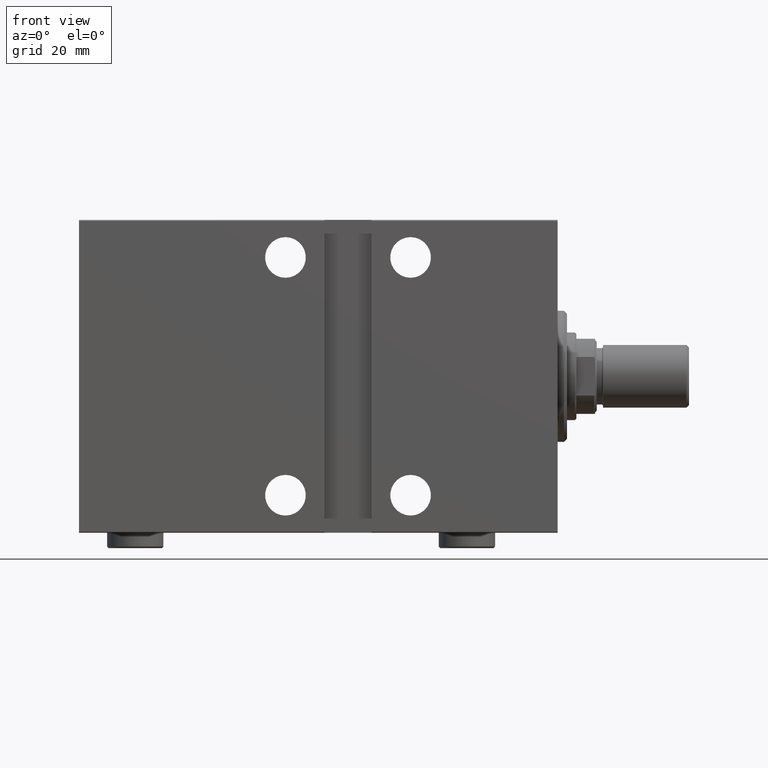
[diagram: clean part render]
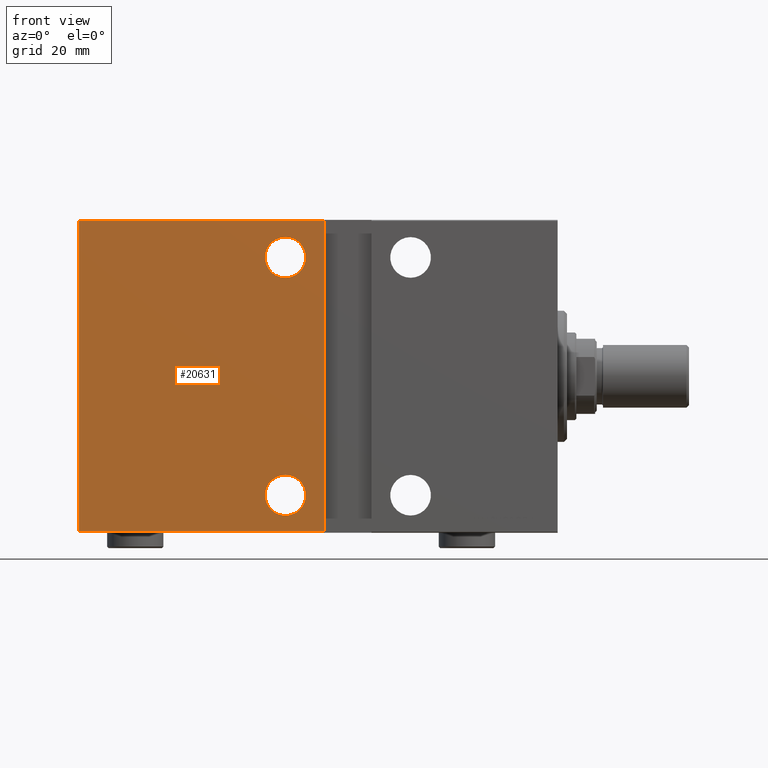
[diagram: same view with one face highlighted and labeled with its STEP entity id]
A machine part, front view. The second image highlights one B-rep face of the part: STEP entity #20631.
In plain terms, the highlighted planar face has unit normal (-0, 1, -0).
Its self-contained STEP definition (entity closure, byte-faithful):
#481 = FACE_BOUND ( 'NONE', #35650, .T. ) ;
#652 = VERTEX_POINT ( 'NONE', #31370 ) ;
#691 = CARTESIAN_POINT ( 'NONE',  ( 74.50000000000002842, 37.50000000000001421, 50.00000000000000000 ) ) ;
#909 = CIRCLE ( 'NONE', #3748, 6.500000000000005329 ) ;
#1263 = ORIENTED_EDGE ( 'NONE', *, *, #28996, .F. ) ;
#1307 = CARTESIAN_POINT ( 'NONE',  ( 153.0000000000000000, 37.50000000000002132, -49.69999999999998153 ) ) ;
#1748 = DIRECTION ( 'NONE',  ( 0.000000000000000000, 0.000000000000000000, 1.000000000000000000 ) ) ;
#2647 = CARTESIAN_POINT ( 'NONE',  ( 153.0000000000000000, 37.50000000000002132, -49.69999999999998153 ) ) ;
#2896 = ORIENTED_EDGE ( 'NONE', *, *, #7460, .F. ) ;
#2900 = CARTESIAN_POINT ( 'NONE',  ( 87.00000000000000000, 37.50000000000004263, 38.00000000000000711 ) ) ;
#3122 = DIRECTION ( 'NONE',  ( 0.000000000000000000, 1.000000000000000000, 0.000000000000000000 ) ) ;
#3748 = AXIS2_PLACEMENT_3D ( 'NONE', #43445, #39864, #9204 ) ;
#4267 = EDGE_LOOP ( 'NONE', ( #1263, #10530, #8708, #13691 ) ) ;
#4840 = VERTEX_POINT ( 'NONE', #40012 ) ;
#4958 = DIRECTION ( 'NONE',  ( 0.000000000000000000, 0.000000000000000000, 1.000000000000000000 ) ) ;
#4992 = CIRCLE ( 'NONE', #29292, 6.500000000000005329 ) ;
#5794 = VERTEX_POINT ( 'NONE', #24754 ) ;
#6063 = CIRCLE ( 'NONE', #8891, 6.500000000000005329 ) ;
#7220 = LINE ( 'NONE', #20882, #37325 ) ;
#7401 = PLANE ( 'NONE',  #27891 ) ;
#7460 = EDGE_CURVE ( 'NONE', #26993, #15873, #4992, .T. ) ;
#8095 = DIRECTION ( 'NONE',  ( 0.000000000000000000, -1.387778780781445676E-16, 1.000000000000000000 ) ) ;
#8486 = CARTESIAN_POINT ( 'NONE',  ( 74.50000000000002842, 37.50000000000001421, 49.70000000000003837 ) ) ;
#8708 = ORIENTED_EDGE ( 'NONE', *, *, #35005, .F. ) ;
#8891 = AXIS2_PLACEMENT_3D ( 'NONE', #2900, #3122, #36683 ) ;
#9203 = EDGE_CURVE ( 'NONE', #5794, #12877, #42199, .T. ) ;
#9204 = DIRECTION ( 'NONE',  ( 0.000000000000000000, 0.000000000000000000, 1.000000000000000000 ) ) ;
#9349 = AXIS2_PLACEMENT_3D ( 'NONE', #25895, #36634, #1748 ) ;
#9604 = CARTESIAN_POINT ( 'NONE',  ( 153.0000000000000000, 37.50000000000000711, 49.70000000000003837 ) ) ;
#10530 = ORIENTED_EDGE ( 'NONE', *, *, #22846, .T. ) ;
#12877 = VERTEX_POINT ( 'NONE', #15577 ) ;
#13691 = ORIENTED_EDGE ( 'NONE', *, *, #19665, .T. ) ;
#13830 = LINE ( 'NONE', #9604, #40768 ) ;
#13868 = VECTOR ( 'NONE', #41840, 1000.000000000000000 ) ;
#14933 = DIRECTION ( 'NONE',  ( -1.000000000000000000, 0.000000000000000000, 0.000000000000000000 ) ) ;
#15297 = EDGE_LOOP ( 'NONE', ( #37023, #26822 ) ) ;
#15577 = CARTESIAN_POINT ( 'NONE',  ( 87.00000000000000000, 37.50000000000004263, 31.50000000000000000 ) ) ;
#15873 = VERTEX_POINT ( 'NONE', #41630 ) ;
#17260 = VECTOR ( 'NONE', #14933, 1000.000000000000000 ) ;
#19211 = EDGE_CURVE ( 'NONE', #15873, #26993, #909, .T. ) ;
#19665 = EDGE_CURVE ( 'NONE', #29462, #652, #13830, .T. ) ;
#20631 = ADVANCED_FACE ( 'NONE', ( #481, #41412, #38056 ), #7401, .F. ) ;
#20882 = CARTESIAN_POINT ( 'NONE',  ( 153.0000000000000000, 37.50000000000002132, -50.00000000000000000 ) ) ;
#21696 = LINE ( 'NONE', #691, #13868 ) ;
#21901 = VERTEX_POINT ( 'NONE', #2647 ) ;
#22846 = EDGE_CURVE ( 'NONE', #21901, #4840, #31942, .T. ) ;
#23249 = DIRECTION ( 'NONE',  ( 1.000000000000000000, 0.000000000000000000, 0.000000000000000000 ) ) ;
#23533 = DIRECTION ( 'NONE',  ( 0.000000000000000000, 1.387778780781445676E-16, -1.000000000000000000 ) ) ;
#24659 = DIRECTION ( 'NONE',  ( 0.000000000000000000, 1.000000000000000000, 0.000000000000000000 ) ) ;
#24754 = CARTESIAN_POINT ( 'NONE',  ( 87.00000000000000000, 37.50000000000004263, 44.50000000000001421 ) ) ;
#25895 = CARTESIAN_POINT ( 'NONE',  ( 87.00000000000000000, 37.50000000000004263, 38.00000000000000711 ) ) ;
#26822 = ORIENTED_EDGE ( 'NONE', *, *, #35325, .F. ) ;
#26993 = VERTEX_POINT ( 'NONE', #42798 ) ;
#27891 = AXIS2_PLACEMENT_3D ( 'NONE', #30241, #43905, #23533 ) ;
#28996 = EDGE_CURVE ( 'NONE', #21901, #652, #7220, .T. ) ;
#29292 = AXIS2_PLACEMENT_3D ( 'NONE', #35600, #24659, #4958 ) ;
#29462 = VERTEX_POINT ( 'NONE', #8486 ) ;
#30241 = CARTESIAN_POINT ( 'NONE',  ( 153.0000000000000000, 37.50000000000002132, -50.00000000000000000 ) ) ;
#31370 = CARTESIAN_POINT ( 'NONE',  ( 153.0000000000000000, 37.50000000000000711, 49.70000000000003837 ) ) ;
#31942 = LINE ( 'NONE', #1307, #17260 ) ;
#35005 = EDGE_CURVE ( 'NONE', #29462, #4840, #21696, .T. ) ;
#35325 = EDGE_CURVE ( 'NONE', #12877, #5794, #6063, .T. ) ;
#35600 = CARTESIAN_POINT ( 'NONE',  ( 87.00000000000000000, 37.50000000000004263, -37.99999999999999289 ) ) ;
#35650 = EDGE_LOOP ( 'NONE', ( #2896, #38154 ) ) ;
#36634 = DIRECTION ( 'NONE',  ( 0.000000000000000000, 1.000000000000000000, 0.000000000000000000 ) ) ;
#36683 = DIRECTION ( 'NONE',  ( 0.000000000000000000, 0.000000000000000000, 1.000000000000000000 ) ) ;
#37023 = ORIENTED_EDGE ( 'NONE', *, *, #9203, .F. ) ;
#37325 = VECTOR ( 'NONE', #8095, 1000.000000000000000 ) ;
#38056 = FACE_OUTER_BOUND ( 'NONE', #4267, .T. ) ;
#38154 = ORIENTED_EDGE ( 'NONE', *, *, #19211, .F. ) ;
#39864 = DIRECTION ( 'NONE',  ( 0.000000000000000000, 1.000000000000000000, 0.000000000000000000 ) ) ;
#40012 = CARTESIAN_POINT ( 'NONE',  ( 74.50000000000001421, 37.50000000000001421, -49.69999999999998153 ) ) ;
#40768 = VECTOR ( 'NONE', #23249, 1000.000000000000000 ) ;
#41412 = FACE_BOUND ( 'NONE', #15297, .T. ) ;
#41630 = CARTESIAN_POINT ( 'NONE',  ( 87.00000000000000000, 37.50000000000004263, -44.50000000000000000 ) ) ;
#41840 = DIRECTION ( 'NONE',  ( -1.387778780781445676E-16, 0.000000000000000000, -1.000000000000000000 ) ) ;
#42199 = CIRCLE ( 'NONE', #9349, 6.500000000000005329 ) ;
#42798 = CARTESIAN_POINT ( 'NONE',  ( 87.00000000000000000, 37.50000000000004263, -31.49999999999998579 ) ) ;
#43445 = CARTESIAN_POINT ( 'NONE',  ( 87.00000000000000000, 37.50000000000004263, -37.99999999999999289 ) ) ;
#43905 = DIRECTION ( 'NONE',  ( 0.000000000000000000, -1.000000000000000000, -1.387778780781445676E-16 ) ) ;